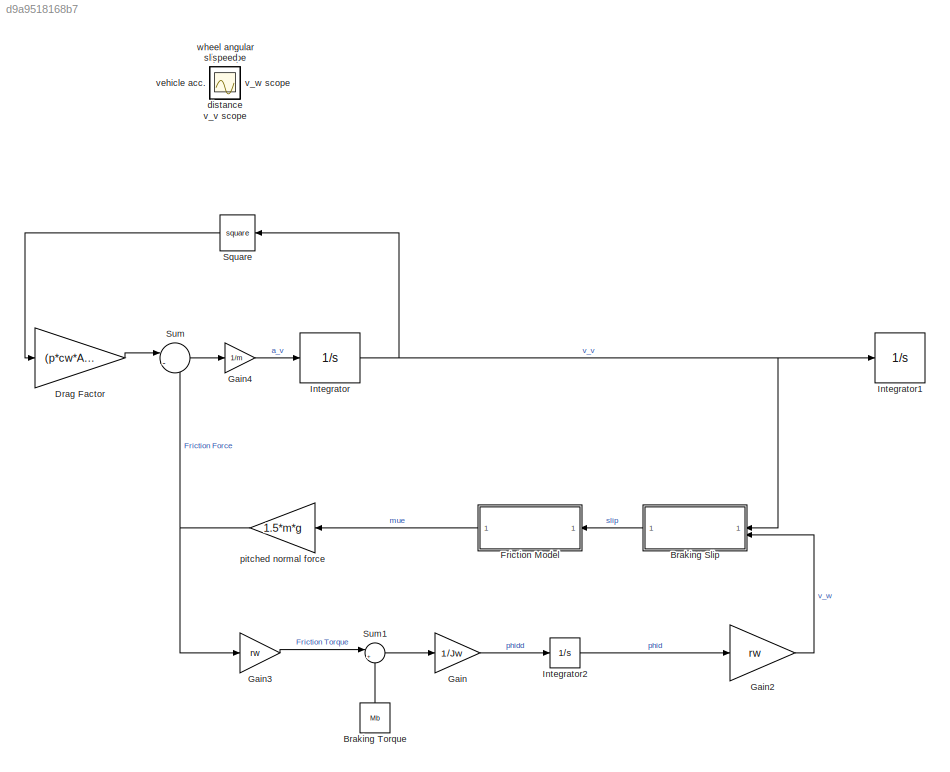
MODEL slx_d9a9518168b7
KIND model
CONFIG AbsTol = auto
CONFIG EnableMultiTasking = off
CONFIG FixedStep = auto
CONFIG MaxStep = auto
CONFIG MinStep = auto
CONFIG RelTol = 1e-3
CONFIG SampleTimeConstraint = Unconstrained
CONFIG SolverName = VariableStepAuto
CONFIG StartTime = 0.0
CONFIG StopTime = 3
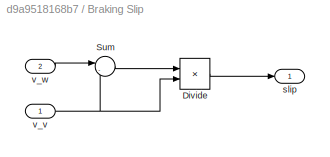
BLOCK [SubSystem] Braking Slip
  NameLocation = top
BLOCK [Product] Braking Slip/Divide
  Inputs = */
BLOCK [Sum] Braking Slip/Sum
  Inputs = |-+
BLOCK [Outport] Braking Slip/slip
BLOCK [Inport] Braking Slip/v_v
BLOCK [Inport] Braking Slip/v_w
  Port = 2
BLOCK [Constant] Braking Torque
  NameLocation = right
  Value = Mb
BLOCK [Gain] Drag Factor
  Gain = (p*cw*A)/(2)
  NameLocation = top
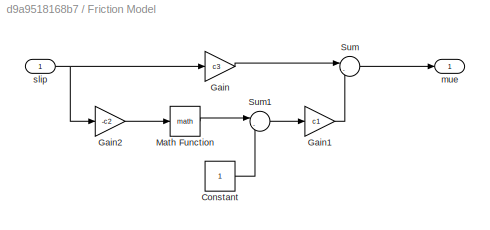
BLOCK [SubSystem] Friction Model
  NameLocation = top
BLOCK [Constant] Friction Model/Constant
BLOCK [Gain] Friction Model/Gain
  Gain = c3
BLOCK [Gain] Friction Model/Gain1
  Gain = c1
BLOCK [Gain] Friction Model/Gain2
  Gain = -c2
BLOCK [Math] Friction Model/Math Function
BLOCK [Sum] Friction Model/Sum
  Inputs = |-+
BLOCK [Sum] Friction Model/Sum1
  Inputs = |-+
BLOCK [Outport] Friction Model/mue
BLOCK [Inport] Friction Model/slip
BLOCK [Gain] Gain
  Gain = 1/Jw
BLOCK [Gain] Gain2
  Gain = rw
BLOCK [Gain] Gain3
  Gain = rw
  NameLocation = top
BLOCK [Gain] Gain4
  Gain = 1/m
BLOCK [Integrator] Integrator
  InitialCondition = v0
  LimitOutput = on
  LowerSaturationLimit = 0
BLOCK [Integrator] Integrator1
  LimitOutput = on
  LowerSaturationLimit = 0
BLOCK [Integrator] Integrator2
  InitialCondition = v0/rw
  LimitOutput = on
  LowerSaturationLimit = 0
BLOCK [Math] Square
  NameLocation = top
  Operator = square
BLOCK [Sum] Sum
  Inputs = |--
BLOCK [Sum] Sum1
  Inputs = |+-
BLOCK [Scope] distance
  Floating = off
  IOType = viewer
  NumInputPorts = 1
  ScopeSpecificationString = Simulink.scopes.TimeScopeBlockCfg('CurrentConfiguration', extmgr.ConfigurationSet(extmgr.Configuration('Core','General UI',true),extmgr.Configuration('Core','Source UI',true),extmgr.Configuration('Sources','WiredSimulink',true,'DataLoggingVariableName','ScopeData3'),extmgr.Configuration('Visuals','Time Domain',true,'SerializedDisplays',{struct('MinYLimReal','-5.63785','MaxYLimReal','50.74065','YLa...<+1390ch>
BLOCK [Gain] pitched normal force
  Gain = 1.5*m*g
  NameLocation = top
BLOCK [Scope] slip scope
  Floating = off
  IOType = viewer
  NumInputPorts = 1
  ScopeSpecificationString = Simulink.scopes.TimeScopeBlockCfg('CurrentConfiguration', extmgr.ConfigurationSet(extmgr.Configuration('Core','General UI',true),extmgr.Configuration('Core','Source UI',true),extmgr.Configuration('Sources','WiredSimulink',true,'DataLoggingVariableName','ScopeData4'),extmgr.Configuration('Visuals','Time Domain',true,'SerializedDisplays',{struct('MinYLimReal','-3.47222','MaxYLimReal','31.25','YLabel...<+1448ch>
BLOCK [Scope] v_v scope
  Floating = off
  IOType = viewer
  NumInputPorts = 1
  ScopeSpecificationString = Simulink.scopes.TimeScopeBlockCfg('CurrentConfiguration', extmgr.ConfigurationSet(extmgr.Configuration('Core','General UI',true),extmgr.Configuration('Core','Source UI',true),extmgr.Configuration('Sources','WiredSimulink',true,'DataLoggingVariableName','ScopeData1'),extmgr.Configuration('Visuals','Time Domain',true,'SerializedDisplays',{struct('MinYLimReal','-3.47222','MaxYLimReal','31.25','YLabel...<+1354ch>
BLOCK [Scope] v_w scope
  Floating = off
  IOType = viewer
  NumInputPorts = 1
  ScopeSpecificationString = Simulink.scopes.TimeScopeBlockCfg('CurrentConfiguration', extmgr.ConfigurationSet(extmgr.Configuration('Core','General UI',true),extmgr.Configuration('Core','Source UI',true),extmgr.Configuration('Sources','WiredSimulink',true,'DataLoggingVariableName','ScopeData2'),extmgr.Configuration('Visuals','Time Domain',true,'SerializedDisplays',{struct('MinYLimReal','-3.47222','MaxYLimReal','31.25','YLabel...<+1354ch>
BLOCK [Scope] vehicle acc.
  Floating = off
  IOType = viewer
  NumInputPorts = 1
  ScopeSpecificationString = Simulink.scopes.TimeScopeBlockCfg('CurrentConfiguration', extmgr.ConfigurationSet(extmgr.Configuration('Core','General UI',true),extmgr.Configuration('Core','Source UI',true),extmgr.Configuration('Sources','WiredSimulink',true,'DataLoggingVariableName','ScopeData3'),extmgr.Configuration('Visuals','Time Domain',true,'SerializedDisplays',{struct('MinYLimReal','-13.44898','MaxYLimReal','1.28857','YLa...<+1402ch>
BLOCK [Scope] wheel angular speed
  Floating = off
  IOType = viewer
  NumInputPorts = 1
  ScopeSpecificationString = Simulink.scopes.TimeScopeBlockCfg('CurrentConfiguration', extmgr.ConfigurationSet(extmgr.Configuration('Core','General UI',true),extmgr.Configuration('Core','Source UI',true),extmgr.Configuration('Sources','WiredSimulink',true,'DataLoggingVariableName','ScopeData2'),extmgr.Configuration('Visuals','Time Domain',true,'SerializedDisplays',{struct('MinYLimReal','-11.57407','MaxYLimReal','104.16667','Y...<+1488ch>
LINE Braking Slip/Divide:1 -> Braking Slip/slip:1
LINE Braking Slip/Sum:1 -> Braking Slip/Divide:1
NET Braking Slip/v_v:1 -> Braking Slip/Divide:2, Braking Slip/Sum:2
LINE Braking Slip/v_w:1 -> Braking Slip/Sum:1
LINE Braking Slip:1 -> Friction Model:1
LINE Braking Torque:1 -> Sum1:2
LINE Drag Factor:1 -> Sum:1
LINE Friction Model/Constant:1 -> Friction Model/Sum1:2
LINE Friction Model/Gain1:1 -> Friction Model/Sum:2
LINE Friction Model/Gain2:1 -> Friction Model/Math Function:1
LINE Friction Model/Gain:1 -> Friction Model/Sum:1
LINE Friction Model/Math Function:1 -> Friction Model/Sum1:1
LINE Friction Model/Sum1:1 -> Friction Model/Gain1:1
LINE Friction Model/Sum:1 -> Friction Model/mue:1
NET Friction Model/slip:1 -> Friction Model/Gain2:1, Friction Model/Gain:1
LINE Friction Model:1 -> pitched normal force:1
LINE Gain2:1 -> Braking Slip:2
LINE Gain3:1 -> Sum1:1
LINE Gain4:1 -> Integrator:1
LINE Gain:1 -> Integrator2:1
LINE Integrator2:1 -> Gain2:1
NET Integrator:1 -> Braking Slip:1, Integrator1:1, Square:1
LINE Square:1 -> Drag Factor:1
LINE Sum1:1 -> Gain:1
LINE Sum:1 -> Gain4:1
NET pitched normal force:1 -> Gain3:1, Sum:2
note: NET lines group one-source signal fan-out (src -> all destinations, sorted); 1:1 wires keep LINE
